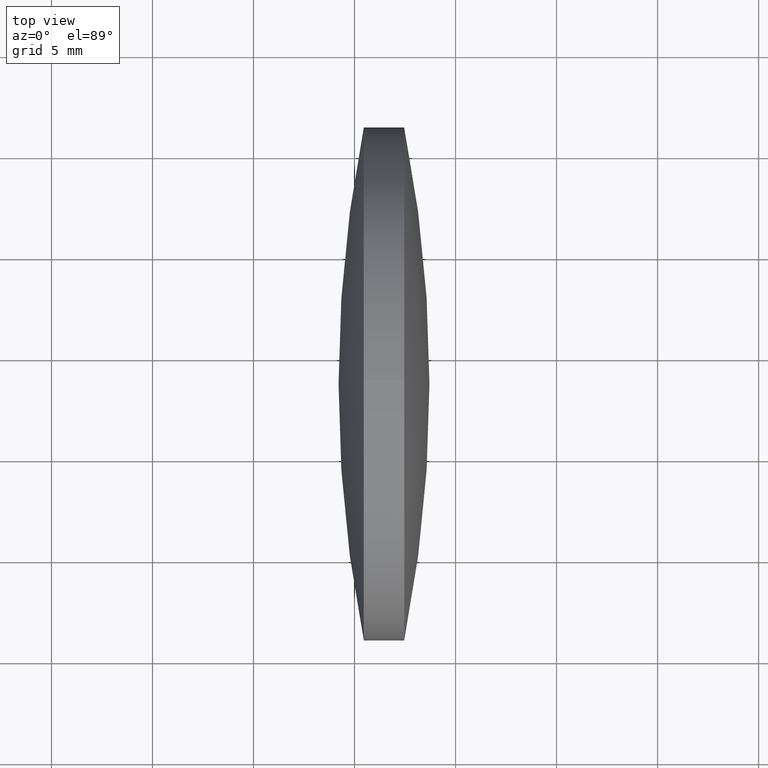
[diagram: clean part render]
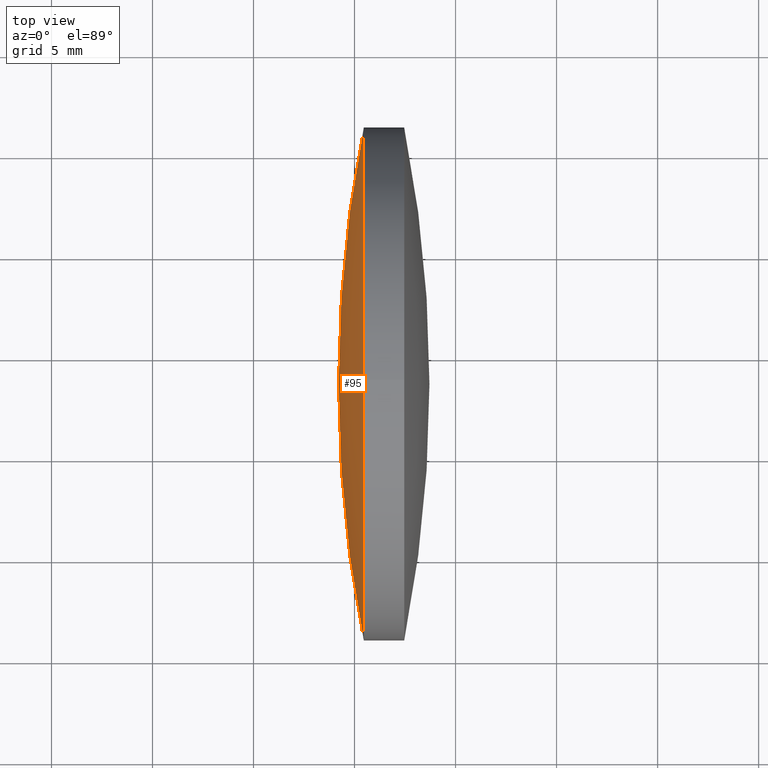
[diagram: same view with one face highlighted and labeled with its STEP entity id]
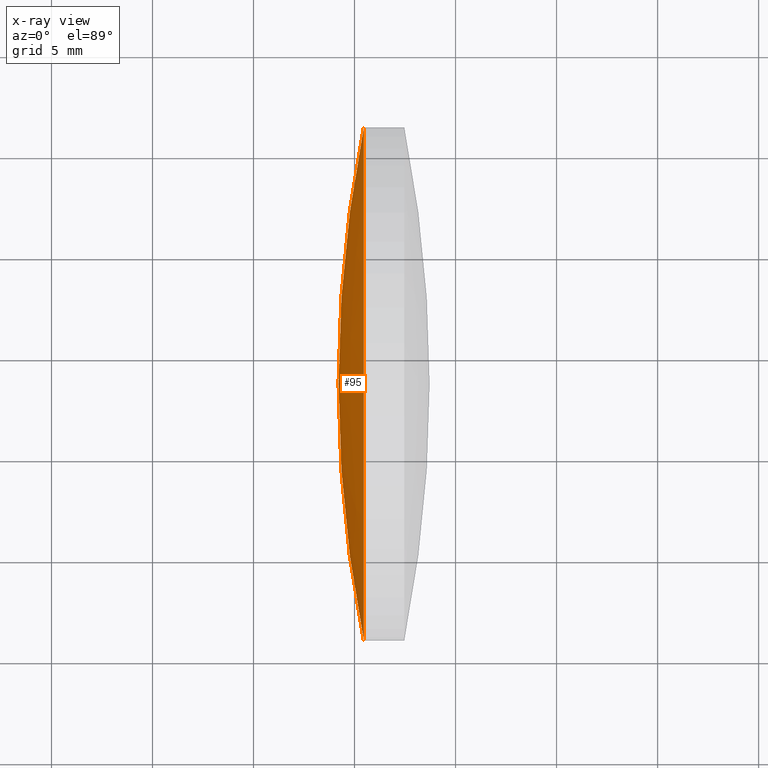
[diagram: x-ray of the same camera — body ghosted, the highlighted face saturated]
A machine part, top view. The second image highlights one B-rep face of the part: STEP entity #95.
The next image is the same camera in x-ray: the body ghosted, the highlighted face saturated — about 0% of this face is hidden behind the body in this view.
In plain terms, the highlighted spherical surface has radius 65.1388 mm.
Its self-contained STEP definition (entity closure, byte-faithful):
#7 = CIRCLE ( 'NONE', #246, 12.69999999999999600 ) ;
#14 = DIRECTION ( 'NONE',  ( 0.0000000000000000000, 0.0000000000000000000, 1.000000000000000000 ) ) ;
#15 = EDGE_CURVE ( 'NONE', #25, #255, #7, .T. ) ;
#25 = VERTEX_POINT ( 'NONE', #262 ) ;
#30 = ORIENTED_EDGE ( 'NONE', *, *, #50, .T. ) ;
#37 = AXIS2_PLACEMENT_3D ( 'NONE', #251, #91, #194 ) ;
#50 = EDGE_CURVE ( 'NONE', #307, #25, #260, .T. ) ;
#62 = DIRECTION ( 'NONE',  ( -0.0000000000000000000, 0.0000000000000000000, 1.000000000000000000 ) ) ;
#65 = FACE_OUTER_BOUND ( 'NONE', #100, .T. ) ;
#69 = CIRCLE ( 'NONE', #37, 65.13880952726569300 ) ;
#76 = CARTESIAN_POINT ( 'NONE',  ( 85.45852234609111500, 35.91611302318478500, -1.555301434917133100E-015 ) ) ;
#78 = EDGE_CURVE ( 'NONE', #255, #156, #137, .T. ) ;
#85 = DIRECTION ( 'NONE',  ( 0.0000000000000000000, 1.000000000000000000, 0.0000000000000000000 ) ) ;
#91 = DIRECTION ( 'NONE',  ( 0.0000000000000000000, 1.224646799147353200E-016, -1.000000000000000000 ) ) ;
#95 = ADVANCED_FACE ( 'NONE', ( #65 ), #287, .T. ) ;
#100 = EDGE_LOOP ( 'NONE', ( #250, #30, #336, #104 ) ) ;
#103 = AXIS2_PLACEMENT_3D ( 'NONE', #108, #304, #85 ) ;
#104 = ORIENTED_EDGE ( 'NONE', *, *, #78, .T. ) ;
#108 = CARTESIAN_POINT ( 'NONE',  ( 149.3472890162139800, 48.61611302318474500, 0.0000000000000000000 ) ) ;
#112 = EDGE_CURVE ( 'NONE', #307, #156, #69, .T. ) ;
#123 = CARTESIAN_POINT ( 'NONE',  ( 85.45852234609111500, 61.31611302318474100, 0.0000000000000000000 ) ) ;
#127 = CARTESIAN_POINT ( 'NONE',  ( 85.45852234609111500, 48.61611302318478100, 0.0000000000000000000 ) ) ;
#137 = CIRCLE ( 'NONE', #331, 65.13880952726569300 ) ;
#156 = VERTEX_POINT ( 'NONE', #253 ) ;
#168 = CARTESIAN_POINT ( 'NONE',  ( 149.3472890162139800, 48.61611302318474500, 0.0000000000000000000 ) ) ;
#181 = DIRECTION ( 'NONE',  ( 0.0000000000000000000, 0.0000000000000000000, 1.000000000000000000 ) ) ;
#194 = DIRECTION ( 'NONE',  ( 0.0000000000000000000, 1.000000000000000000, 1.224646799147353200E-016 ) ) ;
#246 = AXIS2_PLACEMENT_3D ( 'NONE', #127, #327, #181 ) ;
#250 = ORIENTED_EDGE ( 'NONE', *, *, #112, .F. ) ;
#251 = CARTESIAN_POINT ( 'NONE',  ( 149.3472890162139800, 48.61611302318474500, 0.0000000000000000000 ) ) ;
#253 = CARTESIAN_POINT ( 'NONE',  ( 84.20847948894827100, 48.61611302318475200, 0.0000000000000000000 ) ) ;
#255 = VERTEX_POINT ( 'NONE', #123 ) ;
#260 = CIRCLE ( 'NONE', #269, 12.69999999999999600 ) ;
#262 = CARTESIAN_POINT ( 'NONE',  ( 85.45852234609111500, 48.61611302318478100, 12.69999999999999600 ) ) ;
#267 = DIRECTION ( 'NONE',  ( 1.000000000000000000, 0.0000000000000000000, 0.0000000000000000000 ) ) ;
#269 = AXIS2_PLACEMENT_3D ( 'NONE', #334, #337, #14 ) ;
#287 = SPHERICAL_SURFACE ( 'NONE', #103, 65.13880952726569300 ) ;
#304 = DIRECTION ( 'NONE',  ( -0.0000000000000000000, 0.0000000000000000000, -1.000000000000000000 ) ) ;
#307 = VERTEX_POINT ( 'NONE', #76 ) ;
#327 = DIRECTION ( 'NONE',  ( -1.000000000000000000, -0.0000000000000000000, -0.0000000000000000000 ) ) ;
#331 = AXIS2_PLACEMENT_3D ( 'NONE', #168, #62, #267 ) ;
#334 = CARTESIAN_POINT ( 'NONE',  ( 85.45852234609111500, 48.61611302318478100, 0.0000000000000000000 ) ) ;
#336 = ORIENTED_EDGE ( 'NONE', *, *, #15, .T. ) ;
#337 = DIRECTION ( 'NONE',  ( -1.000000000000000000, -0.0000000000000000000, -0.0000000000000000000 ) ) ;